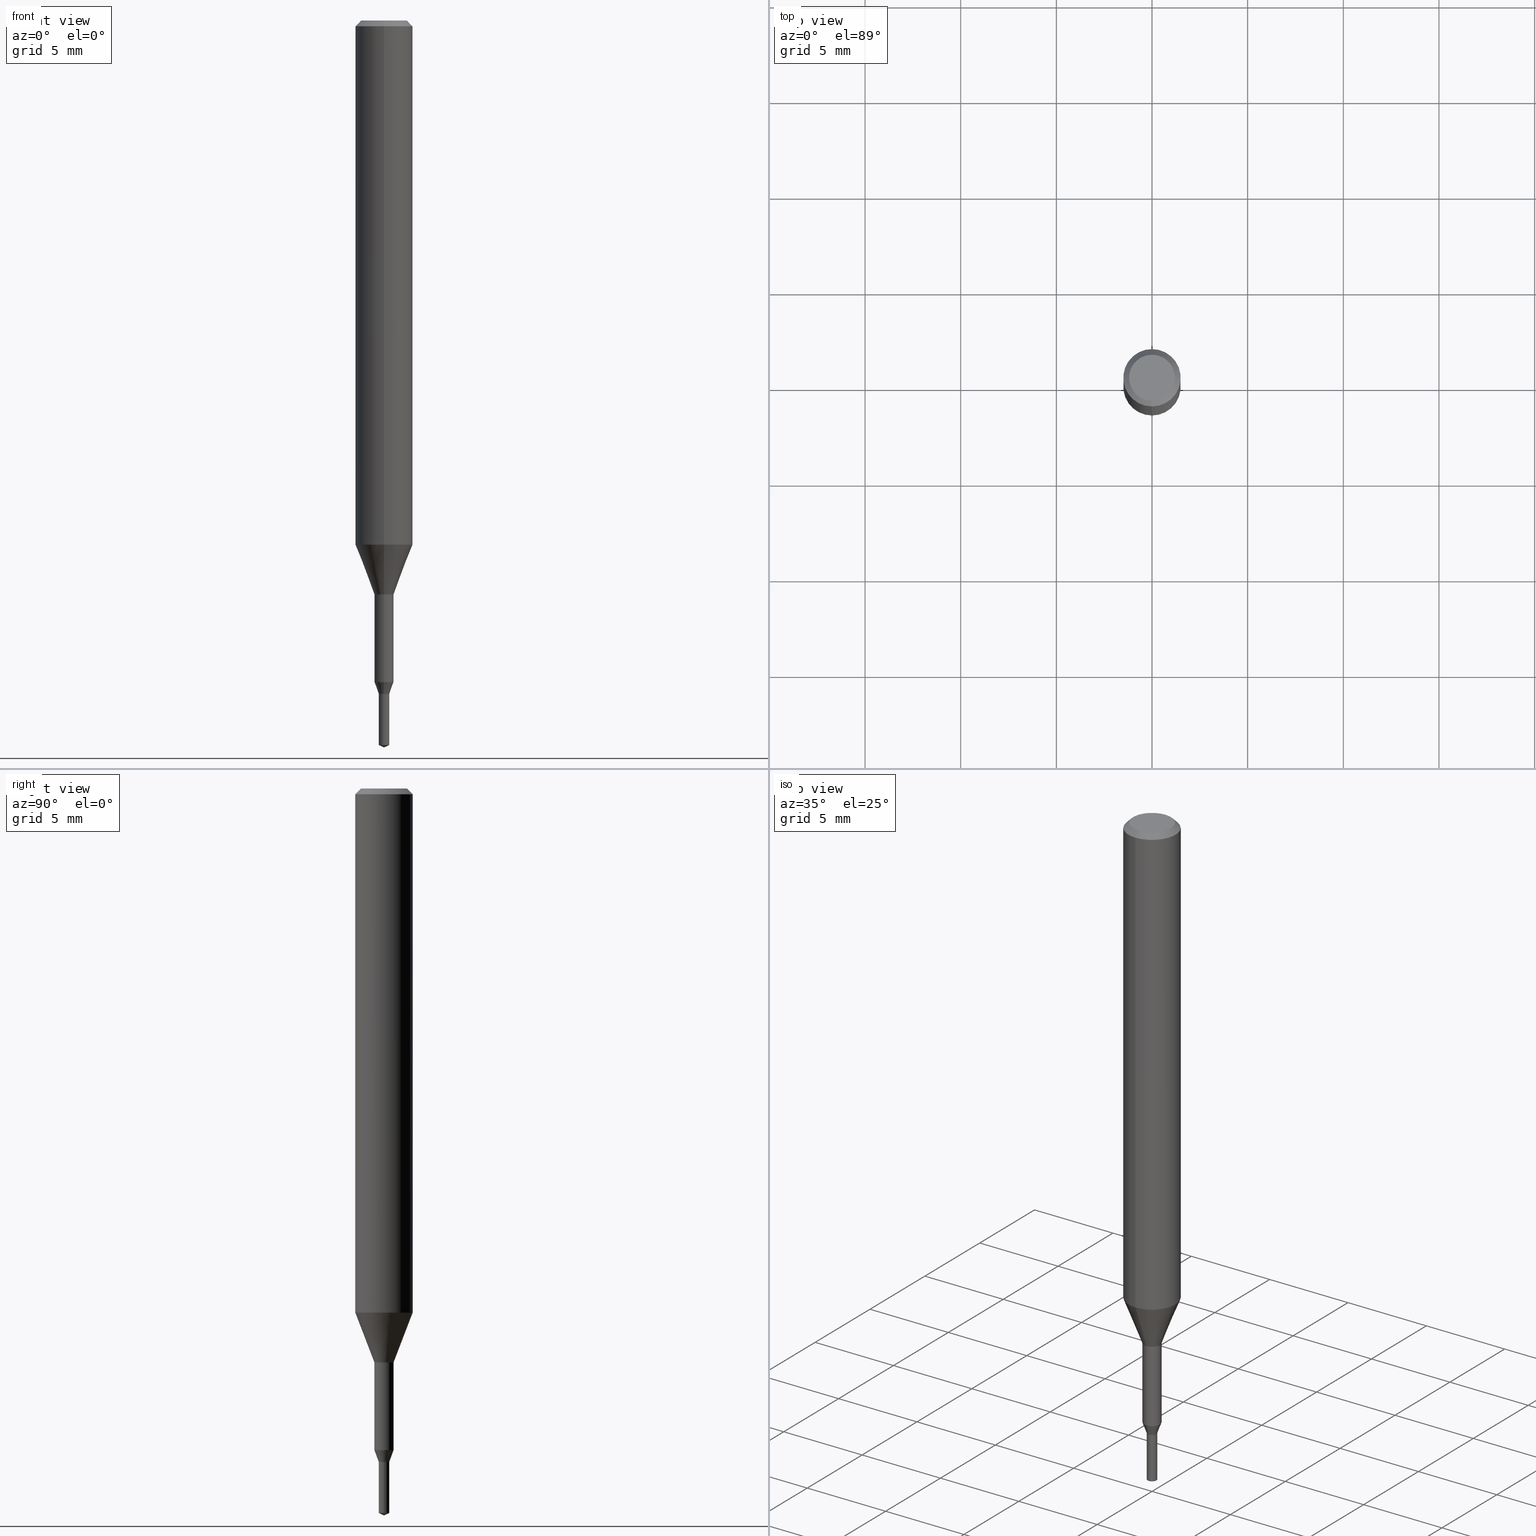
[diagram: canonical four-view strip — front | top / right | iso, engineering-drawing reading convention]
A machine part, canonical four-view strip (front | top / right | iso — engineering-drawing reading convention). The complete STEP part file that produces these views, byte-faithful:
ISO-10303-21;
HEADER;
FILE_DESCRIPTION(('no description'),'unknown implementation level');
FILE_NAME('UTDSX2055-028-Huellk.stp','  ',('CIMSOURCE GmbH'),('CADClick - KiM GmbH - www.kimweb.de'),'unknown preprocess','ACIS','unknown authorization');
FILE_SCHEMA(('automotive_design'));
ENDSEC;
DATA;
#1=MECHANICAL_DESIGN_GEOMETRIC_PRESENTATION_REPRESENTATION(' ',(#14,#15,#16,#17,#18,#19,#20,#21,#22,#23,#24,#25,#26,#27,#28,#29,#30,#31,#32,#33,#34,#35,#36,#37,#38,#39,#40,#41,#42,#43,#44,#45,#46,#47,#48,#49,#50,#51,#52,#53,#54,#55,#56,#57,#58,#59,#60,#61,#62,#63,#64,#65,#66,#67,#68,#69,#70,#71,#72,#73,#74,#75,#76,#77,#78,#79,#80,#81,#82,#83,#84,#85,#86,#87,#88,#89,#90,#91,#92),#10);
#2=PRODUCT_DEFINITION_CONTEXT('',#93,'design');
#3=APPLICATION_PROTOCOL_DEFINITION('INTERNATIONAL STANDARD','automotive_design',1994,#93);
#4=PRODUCT_CATEGORY_RELATIONSHIP('NONE','NONE',#94,#95);
#5=SHAPE_DEFINITION_REPRESENTATION(#96,#97);
#6=PRODUCT_DEFINITION_CONTEXT('',#98,'design');
#7=APPLICATION_PROTOCOL_DEFINITION('INTERNATIONAL STANDARD','automotive_design',1994,#98);
#8=PRODUCT_CATEGORY_RELATIONSHIP('NONE','NONE',#99,#100);
#9=SHAPE_DEFINITION_REPRESENTATION(#101,#102);
#10= (GEOMETRIC_REPRESENTATION_CONTEXT(3)GLOBAL_UNCERTAINTY_ASSIGNED_CONTEXT((#105))GLOBAL_UNIT_ASSIGNED_CONTEXT((#107,#108,#109))REPRESENTATION_CONTEXT('NONE','WORKSPACE'));
#14=STYLED_ITEM('',(#111),#112);
#15=STYLED_ITEM('',(#113),#114);
#16=STYLED_ITEM('',(#115),#116);
#17=STYLED_ITEM('',(#117),#118);
#18=STYLED_ITEM('',(#119),#120);
#19=STYLED_ITEM('',(#121),#122);
#20=STYLED_ITEM('',(#123),#124);
#21=STYLED_ITEM('',(#125),#126);
#22=STYLED_ITEM('',(#127),#128);
#23=STYLED_ITEM('',(#129),#130);
#24=STYLED_ITEM('',(#131),#132);
#25=STYLED_ITEM('',(#133),#134);
#26=STYLED_ITEM('',(#135),#136);
#27=STYLED_ITEM('',(#137),#138);
#28=STYLED_ITEM('',(#139),#140);
#29=STYLED_ITEM('',(#141),#142);
#30=STYLED_ITEM('',(#143),#144);
#31=STYLED_ITEM('',(#145),#146);
#32=STYLED_ITEM('',(#147),#148);
#33=STYLED_ITEM('',(#149),#150);
#34=STYLED_ITEM('',(#151),#152);
#35=STYLED_ITEM('',(#153),#154);
#36=STYLED_ITEM('',(#155),#156);
#37=STYLED_ITEM('',(#157),#158);
#38=STYLED_ITEM('',(#159),#160);
#39=STYLED_ITEM('',(#161),#162);
#40=STYLED_ITEM('',(#163),#164);
#41=STYLED_ITEM('',(#165),#166);
#42=STYLED_ITEM('',(#167),#168);
#43=STYLED_ITEM('',(#169),#170);
#44=STYLED_ITEM('',(#171),#172);
#45=STYLED_ITEM('',(#173),#174);
#46=STYLED_ITEM('',(#175),#176);
#47=STYLED_ITEM('',(#177),#178);
#48=STYLED_ITEM('',(#179),#180);
#49=STYLED_ITEM('',(#181),#182);
#50=STYLED_ITEM('',(#183),#184);
#51=STYLED_ITEM('',(#185),#186);
#52=STYLED_ITEM('',(#187),#188);
#53=STYLED_ITEM('',(#189),#190);
#54=STYLED_ITEM('',(#191),#192);
#55=STYLED_ITEM('',(#193),#194);
#56=STYLED_ITEM('',(#195),#196);
#57=STYLED_ITEM('',(#197),#198);
#58=STYLED_ITEM('',(#199),#200);
#59=STYLED_ITEM('',(#201),#202);
#60=STYLED_ITEM('',(#203),#204);
#61=STYLED_ITEM('',(#205),#206);
#62=STYLED_ITEM('',(#207),#208);
#63=STYLED_ITEM('',(#209),#210);
#64=STYLED_ITEM('',(#211),#212);
#65=STYLED_ITEM('',(#213),#214);
#66=STYLED_ITEM('',(#215),#216);
#67=STYLED_ITEM('',(#217),#218);
#68=STYLED_ITEM('',(#219),#220);
#69=STYLED_ITEM('',(#221),#222);
#70=STYLED_ITEM('',(#223),#224);
#71=STYLED_ITEM('',(#225),#226);
#72=STYLED_ITEM('',(#227),#228);
#73=STYLED_ITEM('',(#229),#230);
#74=STYLED_ITEM('',(#231),#232);
#75=STYLED_ITEM('',(#233),#234);
#76=STYLED_ITEM('',(#235),#236);
#77=STYLED_ITEM('',(#237),#238);
#78=STYLED_ITEM('',(#239),#240);
#79=STYLED_ITEM('',(#241),#242);
#80=STYLED_ITEM('',(#243),#244);
#81=STYLED_ITEM('',(#245),#246);
#82=STYLED_ITEM('',(#247),#248);
#83=STYLED_ITEM('',(#249),#250);
#84=STYLED_ITEM('',(#251),#252);
#85=STYLED_ITEM('',(#253),#254);
#86=STYLED_ITEM('',(#255),#256);
#87=STYLED_ITEM('',(#257),#258);
#88=STYLED_ITEM('',(#259),#260);
#89=STYLED_ITEM('',(#261),#262);
#90=STYLED_ITEM('',(#263),#264);
#91=STYLED_ITEM('',(#265),#266);
#92=STYLED_ITEM('',(#267),#268);
#93=APPLICATION_CONTEXT(' ');
#94=PRODUCT_CATEGORY('part','NONE');
#95=PRODUCT_RELATED_PRODUCT_CATEGORY('detail',' ',(#269));
#96=PRODUCT_DEFINITION_SHAPE('NONE','NONE',#270);
#97=ADVANCED_BREP_SHAPE_REPRESENTATION('1',(#114,#271),#10);
#98=APPLICATION_CONTEXT(' ');
#99=PRODUCT_CATEGORY('part','NONE');
#100=PRODUCT_RELATED_PRODUCT_CATEGORY('detail',' ',(#272));
#101=PRODUCT_DEFINITION_SHAPE('NONE','NONE',#273);
#102=ADVANCED_BREP_SHAPE_REPRESENTATION('2',(#180,#274),#10);
#105=UNCERTAINTY_MEASURE_WITH_UNIT(LENGTH_MEASURE(1.0E-006),#107,'','');
#107= (CONVERSION_BASED_UNIT('MILLIMETRE',#277)LENGTH_UNIT()NAMED_UNIT(#280));
#108= (NAMED_UNIT(#282)PLANE_ANGLE_UNIT()SI_UNIT($,.RADIAN.));
#109= (NAMED_UNIT(#282)SOLID_ANGLE_UNIT()SI_UNIT($,.STERADIAN.));
#111=PRESENTATION_STYLE_ASSIGNMENT((#288));
#112=EDGE_CURVE('',#146,#138,#289,.T.);
#113=PRESENTATION_STYLE_ASSIGNMENT((#290));
#114=MANIFOLD_SOLID_BREP('1',#291);
#115=PRESENTATION_STYLE_ASSIGNMENT((#292));
#116=ADVANCED_FACE('',(#293),#294,.T.);
#117=PRESENTATION_STYLE_ASSIGNMENT((#295));
#118=VERTEX_POINT('',#296);
#119=PRESENTATION_STYLE_ASSIGNMENT((#297));
#120=VERTEX_POINT('',#298);
#121=PRESENTATION_STYLE_ASSIGNMENT((#299));
#122=VERTEX_POINT('',#300);
#123=PRESENTATION_STYLE_ASSIGNMENT((#301));
#124=EDGE_CURVE('',#250,#184,#302,.T.);
#125=PRESENTATION_STYLE_ASSIGNMENT((#303));
#126=EDGE_CURVE('',#128,#250,#304,.T.);
#127=PRESENTATION_STYLE_ASSIGNMENT((#305));
#128=VERTEX_POINT('',#306);
#129=PRESENTATION_STYLE_ASSIGNMENT((#307));
#130=EDGE_CURVE('',#138,#222,#308,.T.);
#131=PRESENTATION_STYLE_ASSIGNMENT((#309));
#132=EDGE_CURVE('',#250,#128,#310,.T.);
#133=PRESENTATION_STYLE_ASSIGNMENT((#311));
#134=VERTEX_POINT('',#312);
#135=PRESENTATION_STYLE_ASSIGNMENT((#313));
#136=ADVANCED_FACE('',(#314),#315,.T.);
#137=PRESENTATION_STYLE_ASSIGNMENT((#316));
#138=VERTEX_POINT('',#317);
#139=PRESENTATION_STYLE_ASSIGNMENT((#318));
#140=VERTEX_POINT('',#319);
#141=PRESENTATION_STYLE_ASSIGNMENT((#320));
#142=ADVANCED_FACE('',(#321),#322,.T.);
#143=PRESENTATION_STYLE_ASSIGNMENT((#323));
#144=ADVANCED_FACE('',(#324),#325,.T.);
#145=PRESENTATION_STYLE_ASSIGNMENT((#326));
#146=VERTEX_POINT('',#327);
#147=PRESENTATION_STYLE_ASSIGNMENT((#328));
#148=ADVANCED_FACE('',(#329),#330,.T.);
#149=PRESENTATION_STYLE_ASSIGNMENT((#331));
#150=ADVANCED_FACE('',(#332),#333,.T.);
#151=PRESENTATION_STYLE_ASSIGNMENT((#334));
#152=ADVANCED_FACE('',(#335),#336,.T.);
#153=PRESENTATION_STYLE_ASSIGNMENT((#337));
#154=EDGE_CURVE('',#128,#120,#338,.T.);
#155=PRESENTATION_STYLE_ASSIGNMENT((#339));
#156=ADVANCED_FACE('',(#340),#341,.T.);
#157=PRESENTATION_STYLE_ASSIGNMENT((#342));
#158=VERTEX_POINT('',#343);
#159=PRESENTATION_STYLE_ASSIGNMENT((#344));
#160=VERTEX_POINT('',#345);
#161=PRESENTATION_STYLE_ASSIGNMENT((#346));
#162=EDGE_CURVE('',#122,#160,#347,.T.);
#163=PRESENTATION_STYLE_ASSIGNMENT((#348));
#164=EDGE_CURVE('',#254,#176,#349,.T.);
#165=PRESENTATION_STYLE_ASSIGNMENT((#350));
#166=VERTEX_POINT('',#351);
#167=PRESENTATION_STYLE_ASSIGNMENT((#352));
#168=EDGE_CURVE('',#176,#254,#353,.T.);
#169=PRESENTATION_STYLE_ASSIGNMENT((#354));
#170=ADVANCED_FACE('',(#355),#356,.T.);
#171=PRESENTATION_STYLE_ASSIGNMENT((#357));
#172=EDGE_CURVE('',#266,#134,#358,.T.);
#173=PRESENTATION_STYLE_ASSIGNMENT((#359));
#174=ADVANCED_FACE('',(#360),#361,.T.);
#175=PRESENTATION_STYLE_ASSIGNMENT((#362));
#176=VERTEX_POINT('',#363);
#177=PRESENTATION_STYLE_ASSIGNMENT((#364));
#178=VERTEX_POINT('',#365);
#179=PRESENTATION_STYLE_ASSIGNMENT((#366));
#180=MANIFOLD_SOLID_BREP('2',#367);
#181=PRESENTATION_STYLE_ASSIGNMENT((#368));
#182=EDGE_CURVE('',#248,#236,#369,.T.);
#183=PRESENTATION_STYLE_ASSIGNMENT((#370));
#184=VERTEX_POINT('',#371);
#185=PRESENTATION_STYLE_ASSIGNMENT((#372));
#186=EDGE_CURVE('',#158,#258,#373,.T.);
#187=PRESENTATION_STYLE_ASSIGNMENT((#374));
#188=EDGE_CURVE('',#140,#120,#375,.T.);
#189=PRESENTATION_STYLE_ASSIGNMENT((#376));
#190=ADVANCED_FACE('',(#377),#378,.T.);
#191=PRESENTATION_STYLE_ASSIGNMENT((#379));
#192=EDGE_CURVE('',#140,#250,#380,.T.);
#193=PRESENTATION_STYLE_ASSIGNMENT((#381));
#194=EDGE_CURVE('',#134,#254,#382,.T.);
#195=PRESENTATION_STYLE_ASSIGNMENT((#383));
#196=EDGE_CURVE('',#120,#140,#384,.T.);
#197=PRESENTATION_STYLE_ASSIGNMENT((#385));
#198=EDGE_CURVE('',#184,#128,#386,.T.);
#199=PRESENTATION_STYLE_ASSIGNMENT((#387));
#200=EDGE_CURVE('',#178,#248,#388,.T.);
#201=PRESENTATION_STYLE_ASSIGNMENT((#389));
#202=EDGE_CURVE('',#222,#236,#390,.T.);
#203=PRESENTATION_STYLE_ASSIGNMENT((#391));
#204=ADVANCED_FACE('',(#392),#393,.T.);
#205=PRESENTATION_STYLE_ASSIGNMENT((#394));
#206=EDGE_CURVE('',#258,#158,#395,.T.);
#207=PRESENTATION_STYLE_ASSIGNMENT((#396));
#208=ADVANCED_FACE('',(#397),#398,.T.);
#209=PRESENTATION_STYLE_ASSIGNMENT((#399));
#210=EDGE_CURVE('',#222,#178,#400,.T.);
#211=PRESENTATION_STYLE_ASSIGNMENT((#401));
#212=EDGE_CURVE('',#266,#160,#402,.T.);
#213=PRESENTATION_STYLE_ASSIGNMENT((#403));
#214=EDGE_CURVE('',#248,#178,#404,.T.);
#215=PRESENTATION_STYLE_ASSIGNMENT((#405));
#216=EDGE_CURVE('',#120,#258,#406,.T.);
#217=PRESENTATION_STYLE_ASSIGNMENT((#407));
#218=EDGE_CURVE('',#176,#122,#408,.T.);
#219=PRESENTATION_STYLE_ASSIGNMENT((#409));
#220=EDGE_CURVE('',#118,#166,#410,.T.);
#221=PRESENTATION_STYLE_ASSIGNMENT((#411));
#222=VERTEX_POINT('',#412);
#223=PRESENTATION_STYLE_ASSIGNMENT((#413));
#224=ADVANCED_FACE('',(#414),#415,.T.);
#225=PRESENTATION_STYLE_ASSIGNMENT((#416));
#226=EDGE_CURVE('',#122,#134,#417,.T.);
#227=PRESENTATION_STYLE_ASSIGNMENT((#418));
#228=ADVANCED_FACE('',(#419),#420,.T.);
#229=PRESENTATION_STYLE_ASSIGNMENT((#421));
#230=EDGE_CURVE('',#236,#146,#422,.T.);
#231=PRESENTATION_STYLE_ASSIGNMENT((#423));
#232=EDGE_CURVE('',#158,#140,#424,.T.);
#233=PRESENTATION_STYLE_ASSIGNMENT((#425));
#234=ADVANCED_FACE('',(#426),#427,.T.);
#235=PRESENTATION_STYLE_ASSIGNMENT((#428));
#236=VERTEX_POINT('',#429);
#237=PRESENTATION_STYLE_ASSIGNMENT((#430));
#238=EDGE_CURVE('',#138,#146,#431,.T.);
#239=PRESENTATION_STYLE_ASSIGNMENT((#432));
#240=EDGE_CURVE('',#166,#118,#433,.T.);
#241=PRESENTATION_STYLE_ASSIGNMENT((#434));
#242=ADVANCED_FACE('',(#435),#436,.T.);
#243=PRESENTATION_STYLE_ASSIGNMENT((#437));
#244=EDGE_CURVE('',#134,#122,#438,.T.);
#245=PRESENTATION_STYLE_ASSIGNMENT((#439));
#246=EDGE_CURVE('',#160,#266,#440,.T.);
#247=PRESENTATION_STYLE_ASSIGNMENT((#441));
#248=VERTEX_POINT('',#442);
#249=PRESENTATION_STYLE_ASSIGNMENT((#443));
#250=VERTEX_POINT('',#444);
#251=PRESENTATION_STYLE_ASSIGNMENT((#445));
#252=ADVANCED_FACE('',(#446),#447,.T.);
#253=PRESENTATION_STYLE_ASSIGNMENT((#448));
#254=VERTEX_POINT('',#449);
#255=PRESENTATION_STYLE_ASSIGNMENT((#450));
#256=EDGE_CURVE('',#254,#166,#451,.T.);
#257=PRESENTATION_STYLE_ASSIGNMENT((#452));
#258=VERTEX_POINT('',#453);
#259=PRESENTATION_STYLE_ASSIGNMENT((#454));
#260=ADVANCED_FACE('',(#455,#456),#457,.T.);
#261=PRESENTATION_STYLE_ASSIGNMENT((#458));
#262=ADVANCED_FACE('',(#459),#460,.T.);
#263=PRESENTATION_STYLE_ASSIGNMENT((#461));
#264=EDGE_CURVE('',#236,#222,#462,.T.);
#265=PRESENTATION_STYLE_ASSIGNMENT((#463));
#266=VERTEX_POINT('',#464);
#267=PRESENTATION_STYLE_ASSIGNMENT((#465));
#268=EDGE_CURVE('',#118,#176,#466,.T.);
#269=PRODUCT('1','1','PART-1-DESC',(#467));
#270=PRODUCT_DEFINITION('NONE','NONE',#468,#2);
#271=AXIS2_PLACEMENT_3D('',#469,#470,#471);
#272=PRODUCT('2','2','PART-2-DESC',(#472));
#273=PRODUCT_DEFINITION('NONE','NONE',#473,#6);
#274=AXIS2_PLACEMENT_3D('',#474,#475,#476);
#277=LENGTH_MEASURE_WITH_UNIT(LENGTH_MEASURE(1.0),#477);
#280=DIMENSIONAL_EXPONENTS(1.0,0.0,0.0,0.0,0.0,0.0,0.0);
#282=DIMENSIONAL_EXPONENTS(0.0,0.0,0.0,0.0,0.0,0.0,0.0);
#288=CURVE_STYLE('',#478,POSITIVE_LENGTH_MEASURE(1.0E-006),#479);
#289=CIRCLE('',#480,0.275036399676376);
#290=SURFACE_STYLE_USAGE(.BOTH.,#481);
#291=CLOSED_SHELL('',(#142,#242,#228,#170,#234,#262,#252,#116,#208,#260,#144,#156,#148));
#292=SURFACE_STYLE_USAGE(.BOTH.,#482);
#293=FACE_OUTER_BOUND('',#483,.T.);
#294=CYLINDRICAL_SURFACE('',#484,1.5);
#295=POINT_STYLE(' ',#485,POSITIVE_LENGTH_MEASURE(1.0E-006),#486);
#296=CARTESIAN_POINT('',(6.12303176911189E-017,-0.5,-30.0));
#297=POINT_STYLE(' ',#487,POSITIVE_LENGTH_MEASURE(1.0E-006),#488);
#298=CARTESIAN_POINT('',(0.275,3.36766747301154E-017,-35.2));
#299=POINT_STYLE(' ',#489,POSITIVE_LENGTH_MEASURE(1.0E-006),#490);
#300=CARTESIAN_POINT('',(1.83690953073357E-016,-1.5,-0.300000000000001));
#301=CURVE_STYLE('',#491,POSITIVE_LENGTH_MEASURE(1.0E-006),#492);
#302=LINE('',#493,#494);
#303=CURVE_STYLE('',#495,POSITIVE_LENGTH_MEASURE(1.0E-006),#496);
#304=CIRCLE('',#497,0.275);
#305=POINT_STYLE(' ',#498,POSITIVE_LENGTH_MEASURE(1.0E-006),#499);
#306=CARTESIAN_POINT('',(0.275,3.36766747301154E-017,-37.87176539));
#307=CURVE_STYLE('',#500,POSITIVE_LENGTH_MEASURE(1.0E-006),#501);
#308=LINE('',#502,#503);
#309=CURVE_STYLE('',#504,POSITIVE_LENGTH_MEASURE(1.0E-006),#505);
#310=CIRCLE('',#506,0.275);
#311=POINT_STYLE(' ',#507,POSITIVE_LENGTH_MEASURE(1.0E-006),#508);
#312=CARTESIAN_POINT('',(0.0,1.5,-0.300000000000001));
#313=SURFACE_STYLE_USAGE(.BOTH.,#509);
#314=FACE_OUTER_BOUND('',#510,.T.);
#315=CONICAL_SURFACE('',#511,0.275518203883495,1.47460696996849);
#316=POINT_STYLE(' ',#512,POSITIVE_LENGTH_MEASURE(1.0E-006),#513);
#317=CARTESIAN_POINT('',(3.36811322576121E-017,-0.275036399676376,-35.1999));
#318=POINT_STYLE(' ',#514,POSITIVE_LENGTH_MEASURE(1.0E-006),#515);
#319=CARTESIAN_POINT('',(-0.275,0.0,-35.2));
#320=SURFACE_STYLE_USAGE(.BOTH.,#516);
#321=FACE_OUTER_BOUND('',#517,.T.);
#322=CONICAL_SURFACE('',#518,0.387493199838188,0.349089276326414);
#323=SURFACE_STYLE_USAGE(.BOTH.,#519);
#324=FACE_OUTER_BOUND('',#520,.T.);
#325=CYLINDRICAL_SURFACE('',#521,0.49995);
#326=POINT_STYLE(' ',#522,POSITIVE_LENGTH_MEASURE(1.0E-006),#523);
#327=CARTESIAN_POINT('',(0.0,0.275036399676376,-35.1999));
#328=SURFACE_STYLE_USAGE(.BOTH.,#524);
#329=FACE_OUTER_BOUND('',#525,.T.);
#330=PLANE('',#526);
#331=SURFACE_STYLE_USAGE(.BOTH.,#527);
#332=FACE_OUTER_BOUND('',#528,.T.);
#333=CONICAL_SURFACE('',#529,0.1375,1.13446400182674);
#334=SURFACE_STYLE_USAGE(.BOTH.,#530);
#335=FACE_OUTER_BOUND('',#531,.T.);
#336=CYLINDRICAL_SURFACE('',#532,0.275);
#337=CURVE_STYLE('',#533,POSITIVE_LENGTH_MEASURE(1.0E-006),#534);
#338=LINE('',#535,#536);
#339=SURFACE_STYLE_USAGE(.BOTH.,#537);
#340=FACE_OUTER_BOUND('',#538,.T.);
#341=CONICAL_SURFACE('',#539,0.387493199838188,0.349089276326414);
#342=POINT_STYLE(' ',#540,POSITIVE_LENGTH_MEASURE(1.0E-006),#541);
#343=CARTESIAN_POINT('',(-0.276036407766991,0.0,-35.1999));
#344=POINT_STYLE(' ',#542,POSITIVE_LENGTH_MEASURE(1.0E-006),#543);
#345=CARTESIAN_POINT('',(1.46952762458685E-016,-1.2,0.0));
#346=CURVE_STYLE('',#544,POSITIVE_LENGTH_MEASURE(1.0E-006),#545);
#347=LINE('',#546,#547);
#348=CURVE_STYLE('',#548,POSITIVE_LENGTH_MEASURE(1.0E-006),#549);
#349=CIRCLE('',#550,1.5);
#350=POINT_STYLE(' ',#551,POSITIVE_LENGTH_MEASURE(1.0E-006),#552);
#351=CARTESIAN_POINT('',(0.0,0.5,-30.0));
#352=CURVE_STYLE('',#553,POSITIVE_LENGTH_MEASURE(1.0E-006),#554);
#353=CIRCLE('',#555,1.5);
#354=SURFACE_STYLE_USAGE(.BOTH.,#556);
#355=FACE_OUTER_BOUND('',#557,.T.);
#356=CYLINDRICAL_SURFACE('',#558,1.5);
#357=CURVE_STYLE('',#559,POSITIVE_LENGTH_MEASURE(1.0E-006),#560);
#358=LINE('',#561,#562);
#359=SURFACE_STYLE_USAGE(.BOTH.,#563);
#360=FACE_OUTER_BOUND('',#564,.T.);
#361=CONICAL_SURFACE('',#565,0.1375,1.13446400182674);
#362=POINT_STYLE(' ',#566,POSITIVE_LENGTH_MEASURE(1.0E-006),#567);
#363=CARTESIAN_POINT('',(1.83690953073357E-016,-1.5,-27.395));
#364=POINT_STYLE(' ',#568,POSITIVE_LENGTH_MEASURE(1.0E-006),#569);
#365=CARTESIAN_POINT('',(6.12241946593498E-017,-0.49995,-30.0));
#366=SURFACE_STYLE_USAGE(.BOTH.,#570);
#367=CLOSED_SHELL('',(#174,#204,#190,#224,#136,#152,#150));
#368=CURVE_STYLE('',#571,POSITIVE_LENGTH_MEASURE(1.0E-006),#572);
#369=LINE('',#573,#574);
#370=POINT_STYLE(' ',#575,POSITIVE_LENGTH_MEASURE(1.0E-006),#576);
#371=CARTESIAN_POINT('',(0.0,0.0,-38.0));
#372=CURVE_STYLE('',#577,POSITIVE_LENGTH_MEASURE(1.0E-006),#578);
#373=CIRCLE('',#579,0.276036407766991);
#374=CURVE_STYLE('',#580,POSITIVE_LENGTH_MEASURE(1.0E-006),#581);
#375=CIRCLE('',#582,0.275);
#376=SURFACE_STYLE_USAGE(.BOTH.,#583);
#377=FACE_OUTER_BOUND('',#584,.T.);
#378=CONICAL_SURFACE('',#585,0.275518203883495,1.47460696996849);
#379=CURVE_STYLE('',#586,POSITIVE_LENGTH_MEASURE(1.0E-006),#587);
#380=LINE('',#588,#589);
#381=CURVE_STYLE('',#590,POSITIVE_LENGTH_MEASURE(1.0E-006),#591);
#382=LINE('',#592,#593);
#383=CURVE_STYLE('',#594,POSITIVE_LENGTH_MEASURE(1.0E-006),#595);
#384=CIRCLE('',#596,0.275);
#385=CURVE_STYLE('',#597,POSITIVE_LENGTH_MEASURE(1.0E-006),#598);
#386=LINE('',#599,#600);
#387=CURVE_STYLE('',#601,POSITIVE_LENGTH_MEASURE(1.0E-006),#602);
#388=CIRCLE('',#603,0.49995);
#389=CURVE_STYLE('',#604,POSITIVE_LENGTH_MEASURE(1.0E-006),#605);
#390=CIRCLE('',#606,0.49995);
#391=SURFACE_STYLE_USAGE(.BOTH.,#607);
#392=FACE_OUTER_BOUND('',#608,.T.);
#393=CYLINDRICAL_SURFACE('',#609,0.275);
#394=CURVE_STYLE('',#610,POSITIVE_LENGTH_MEASURE(1.0E-006),#611);
#395=CIRCLE('',#612,0.276036407766991);
#396=SURFACE_STYLE_USAGE(.BOTH.,#613);
#397=FACE_OUTER_BOUND('',#614,.T.);
#398=CONICAL_SURFACE('',#615,1.0,0.366530581623394);
#399=CURVE_STYLE('',#616,POSITIVE_LENGTH_MEASURE(1.0E-006),#617);
#400=LINE('',#618,#619);
#401=CURVE_STYLE('',#620,POSITIVE_LENGTH_MEASURE(1.0E-006),#621);
#402=CIRCLE('',#622,1.2);
#403=CURVE_STYLE('',#623,POSITIVE_LENGTH_MEASURE(1.0E-006),#624);
#404=CIRCLE('',#625,0.49995);
#405=CURVE_STYLE('',#626,POSITIVE_LENGTH_MEASURE(1.0E-006),#627);
#406=LINE('',#628,#629);
#407=CURVE_STYLE('',#630,POSITIVE_LENGTH_MEASURE(1.0E-006),#631);
#408=LINE('',#632,#633);
#409=CURVE_STYLE('',#634,POSITIVE_LENGTH_MEASURE(1.0E-006),#635);
#410=CIRCLE('',#636,0.5);
#411=POINT_STYLE(' ',#637,POSITIVE_LENGTH_MEASURE(1.0E-006),#638);
#412=CARTESIAN_POINT('',(6.12241946593498E-017,-0.49995,-34.582));
#413=SURFACE_STYLE_USAGE(.BOTH.,#639);
#414=FACE_OUTER_BOUND('',#640,.T.);
#415=PLANE('',#641);
#416=CURVE_STYLE('',#642,POSITIVE_LENGTH_MEASURE(1.0E-006),#643);
#417=CIRCLE('',#644,1.5);
#418=SURFACE_STYLE_USAGE(.BOTH.,#645);
#419=FACE_OUTER_BOUND('',#646,.T.);
#420=CONICAL_SURFACE('',#647,1.0,0.366530581623394);
#421=CURVE_STYLE('',#648,POSITIVE_LENGTH_MEASURE(1.0E-006),#649);
#422=LINE('',#650,#651);
#423=CURVE_STYLE('',#652,POSITIVE_LENGTH_MEASURE(1.0E-006),#653);
#424=LINE('',#654,#655);
#425=SURFACE_STYLE_USAGE(.BOTH.,#656);
#426=FACE_OUTER_BOUND('',#657,.T.);
#427=CONICAL_SURFACE('',#658,1.35,0.785398163397447);
#428=POINT_STYLE(' ',#659,POSITIVE_LENGTH_MEASURE(1.0E-006),#660);
#429=CARTESIAN_POINT('',(0.0,0.49995,-34.582));
#430=CURVE_STYLE('',#661,POSITIVE_LENGTH_MEASURE(1.0E-006),#662);
#431=CIRCLE('',#663,0.275036399676376);
#432=CURVE_STYLE('',#664,POSITIVE_LENGTH_MEASURE(1.0E-006),#665);
#433=CIRCLE('',#666,0.5);
#434=SURFACE_STYLE_USAGE(.BOTH.,#667);
#435=FACE_OUTER_BOUND('',#668,.T.);
#436=CYLINDRICAL_SURFACE('',#669,0.49995);
#437=CURVE_STYLE('',#670,POSITIVE_LENGTH_MEASURE(1.0E-006),#671);
#438=CIRCLE('',#672,1.5);
#439=CURVE_STYLE('',#673,POSITIVE_LENGTH_MEASURE(1.0E-006),#674);
#440=CIRCLE('',#675,1.2);
#441=POINT_STYLE(' ',#676,POSITIVE_LENGTH_MEASURE(1.0E-006),#677);
#442=CARTESIAN_POINT('',(0.0,0.49995,-30.0));
#443=POINT_STYLE(' ',#678,POSITIVE_LENGTH_MEASURE(1.0E-006),#679);
#444=CARTESIAN_POINT('',(-0.275,0.0,-37.87176539));
#445=SURFACE_STYLE_USAGE(.BOTH.,#680);
#446=FACE_OUTER_BOUND('',#681,.T.);
#447=CONICAL_SURFACE('',#682,1.35,0.785398163397447);
#448=POINT_STYLE(' ',#683,POSITIVE_LENGTH_MEASURE(1.0E-006),#684);
#449=CARTESIAN_POINT('',(0.0,1.5,-27.395));
#450=CURVE_STYLE('',#685,POSITIVE_LENGTH_MEASURE(1.0E-006),#686);
#451=LINE('',#687,#688);
#452=POINT_STYLE(' ',#689,POSITIVE_LENGTH_MEASURE(1.0E-006),#690);
#453=CARTESIAN_POINT('',(0.276036407766991,3.38035938837761E-017,-35.1999));
#454=SURFACE_STYLE_USAGE(.BOTH.,#691);
#455=FACE_BOUND('',#692,.T.);
#456=FACE_OUTER_BOUND('',#693,.T.);
#457=PLANE('',#694);
#458=SURFACE_STYLE_USAGE(.BOTH.,#695);
#459=FACE_OUTER_BOUND('',#696,.T.);
#460=PLANE('',#697);
#461=CURVE_STYLE('',#698,POSITIVE_LENGTH_MEASURE(1.0E-006),#699);
#462=CIRCLE('',#700,0.49995);
#463=POINT_STYLE(' ',#701,POSITIVE_LENGTH_MEASURE(1.0E-006),#702);
#464=CARTESIAN_POINT('',(0.0,1.2,0.0));
#465=CURVE_STYLE('',#703,POSITIVE_LENGTH_MEASURE(1.0E-006),#704);
#466=LINE('',#705,#706);
#467=PRODUCT_CONTEXT('',#93,'mechanical');
#468=PRODUCT_DEFINITION_FORMATION_WITH_SPECIFIED_SOURCE(' ','NONE',#269,.NOT_KNOWN.);
#469=CARTESIAN_POINT('',(0.0,0.0,0.0));
#470=DIRECTION('',(0.0,0.0,1.0));
#471=DIRECTION('',(1.0,0.0,0.0));
#472=PRODUCT_CONTEXT('',#98,'mechanical');
#473=PRODUCT_DEFINITION_FORMATION_WITH_SPECIFIED_SOURCE(' ','NONE',#272,.NOT_KNOWN.);
#474=CARTESIAN_POINT('',(0.0,0.0,0.0));
#475=DIRECTION('',(0.0,0.0,1.0));
#476=DIRECTION('',(1.0,0.0,0.0));
#477= (NAMED_UNIT(#280)LENGTH_UNIT()SI_UNIT(.MILLI.,.METRE.));
#478=DRAUGHTING_PRE_DEFINED_CURVE_FONT('continuous');
#479=COLOUR_RGB('',0.498039215803146,0.498039215803146,0.498039215803146);
#480=AXIS2_PLACEMENT_3D('',#708,#709,#710);
#481=SURFACE_SIDE_STYLE('',(#711));
#482=SURFACE_SIDE_STYLE('',(#712));
#483=EDGE_LOOP('',(#713,#714,#715,#716));
#484=AXIS2_PLACEMENT_3D('',#717,#718,#719);
#485=PRE_DEFINED_MARKER('');
#486=COLOUR_RGB('',0.498039215803146,0.498039215803146,0.498039215803146);
#487=PRE_DEFINED_MARKER('');
#488=COLOUR_RGB('',0.800000011920929,0.800000011920929,0.800000011920929);
#489=PRE_DEFINED_MARKER('');
#490=COLOUR_RGB('',0.498039215803146,0.498039215803146,0.498039215803146);
#491=DRAUGHTING_PRE_DEFINED_CURVE_FONT('continuous');
#492=COLOUR_RGB('',0.800000011920929,0.800000011920929,0.800000011920929);
#493=CARTESIAN_POINT('',(-0.1375,-1.68383373650577E-017,-37.935882695));
#494=VECTOR('',#720,1.0);
#495=DRAUGHTING_PRE_DEFINED_CURVE_FONT('continuous');
#496=COLOUR_RGB('',0.800000011920929,0.800000011920929,0.800000011920929);
#497=AXIS2_PLACEMENT_3D('',#721,#722,#723);
#498=PRE_DEFINED_MARKER('');
#499=COLOUR_RGB('',0.800000011920929,0.800000011920929,0.800000011920929);
#500=DRAUGHTING_PRE_DEFINED_CURVE_FONT('continuous');
#501=COLOUR_RGB('',0.498039215803146,0.498039215803146,0.498039215803146);
#502=CARTESIAN_POINT('',(4.74526634584809E-017,-0.387493199838188,-34.89095));
#503=VECTOR('',#724,1.0);
#504=DRAUGHTING_PRE_DEFINED_CURVE_FONT('continuous');
#505=COLOUR_RGB('',0.800000011920929,0.800000011920929,0.800000011920929);
#506=AXIS2_PLACEMENT_3D('',#725,#726,#727);
#507=PRE_DEFINED_MARKER('');
#508=COLOUR_RGB('',0.498039215803146,0.498039215803146,0.498039215803146);
#509=SURFACE_SIDE_STYLE('',(#728));
#510=EDGE_LOOP('',(#729,#730,#731,#732));
#511=AXIS2_PLACEMENT_3D('',#733,#734,#735);
#512=PRE_DEFINED_MARKER('');
#513=COLOUR_RGB('',0.498039215803146,0.498039215803146,0.498039215803146);
#514=PRE_DEFINED_MARKER('');
#515=COLOUR_RGB('',0.800000011920929,0.800000011920929,0.800000011920929);
#516=SURFACE_SIDE_STYLE('',(#736));
#517=EDGE_LOOP('',(#737,#738,#739,#740));
#518=AXIS2_PLACEMENT_3D('',#741,#742,#743);
#519=SURFACE_SIDE_STYLE('',(#744));
#520=EDGE_LOOP('',(#745,#746,#747,#748));
#521=AXIS2_PLACEMENT_3D('',#749,#750,#751);
#522=PRE_DEFINED_MARKER('');
#523=COLOUR_RGB('',0.498039215803146,0.498039215803146,0.498039215803146);
#524=SURFACE_SIDE_STYLE('',(#752));
#525=EDGE_LOOP('',(#753,#754));
#526=AXIS2_PLACEMENT_3D('',#755,#756,#757);
#527=SURFACE_SIDE_STYLE('',(#758));
#528=EDGE_LOOP('',(#759,#760,#761));
#529=AXIS2_PLACEMENT_3D('',#762,#763,#764);
#530=SURFACE_SIDE_STYLE('',(#765));
#531=EDGE_LOOP('',(#766,#767,#768,#769));
#532=AXIS2_PLACEMENT_3D('',#770,#771,#772);
#533=DRAUGHTING_PRE_DEFINED_CURVE_FONT('continuous');
#534=COLOUR_RGB('',0.800000011920929,0.800000011920929,0.800000011920929);
#535=CARTESIAN_POINT('',(0.275,3.36766747301154E-017,-36.535882695));
#536=VECTOR('',#773,1.0);
#537=SURFACE_SIDE_STYLE('',(#774));
#538=EDGE_LOOP('',(#775,#776,#777,#778));
#539=AXIS2_PLACEMENT_3D('',#779,#780,#781);
#540=PRE_DEFINED_MARKER('');
#541=COLOUR_RGB('',0.800000011920929,0.800000011920929,0.800000011920929);
#542=PRE_DEFINED_MARKER('');
#543=COLOUR_RGB('',0.498039215803146,0.498039215803146,0.498039215803146);
#544=DRAUGHTING_PRE_DEFINED_CURVE_FONT('continuous');
#545=COLOUR_RGB('',0.498039215803146,0.498039215803146,0.498039215803146);
#546=CARTESIAN_POINT('',(1.65321857766021E-016,-1.35,-0.150000000000002));
#547=VECTOR('',#782,1.0);
#548=DRAUGHTING_PRE_DEFINED_CURVE_FONT('continuous');
#549=COLOUR_RGB('',0.498039215803146,0.498039215803146,0.498039215803146);
#550=AXIS2_PLACEMENT_3D('',#783,#784,#785);
#551=PRE_DEFINED_MARKER('');
#552=COLOUR_RGB('',0.498039215803146,0.498039215803146,0.498039215803146);
#553=DRAUGHTING_PRE_DEFINED_CURVE_FONT('continuous');
#554=COLOUR_RGB('',0.498039215803146,0.498039215803146,0.498039215803146);
#555=AXIS2_PLACEMENT_3D('',#786,#787,#788);
#556=SURFACE_SIDE_STYLE('',(#789));
#557=EDGE_LOOP('',(#790,#791,#792,#793));
#558=AXIS2_PLACEMENT_3D('',#794,#795,#796);
#559=DRAUGHTING_PRE_DEFINED_CURVE_FONT('continuous');
#560=COLOUR_RGB('',0.498039215803146,0.498039215803146,0.498039215803146);
#561=CARTESIAN_POINT('',(-1.65321857766021E-016,1.35,-0.150000000000002));
#562=VECTOR('',#797,1.0);
#563=SURFACE_SIDE_STYLE('',(#798));
#564=EDGE_LOOP('',(#799,#800,#801));
#565=AXIS2_PLACEMENT_3D('',#802,#803,#804);
#566=PRE_DEFINED_MARKER('');
#567=COLOUR_RGB('',0.498039215803146,0.498039215803146,0.498039215803146);
#568=PRE_DEFINED_MARKER('');
#569=COLOUR_RGB('',0.498039215803146,0.498039215803146,0.498039215803146);
#570=SURFACE_SIDE_STYLE('',(#805));
#571=DRAUGHTING_PRE_DEFINED_CURVE_FONT('continuous');
#572=COLOUR_RGB('',0.498039215803146,0.498039215803146,0.498039215803146);
#573=CARTESIAN_POINT('',(-6.12241946593498E-017,0.49995,-32.291));
#574=VECTOR('',#806,1.0);
#575=PRE_DEFINED_MARKER('');
#576=COLOUR_RGB('',0.800000011920929,0.800000011920929,0.800000011920929);
#577=DRAUGHTING_PRE_DEFINED_CURVE_FONT('continuous');
#578=COLOUR_RGB('',0.800000011920929,0.800000011920929,0.800000011920929);
#579=AXIS2_PLACEMENT_3D('',#807,#808,#809);
#580=DRAUGHTING_PRE_DEFINED_CURVE_FONT('continuous');
#581=COLOUR_RGB('',0.800000011920929,0.800000011920929,0.800000011920929);
#582=AXIS2_PLACEMENT_3D('',#810,#811,#812);
#583=SURFACE_SIDE_STYLE('',(#813));
#584=EDGE_LOOP('',(#814,#815,#816,#817));
#585=AXIS2_PLACEMENT_3D('',#818,#819,#820);
#586=DRAUGHTING_PRE_DEFINED_CURVE_FONT('continuous');
#587=COLOUR_RGB('',0.800000011920929,0.800000011920929,0.800000011920929);
#588=CARTESIAN_POINT('',(-0.275,-3.36766747301154E-017,-36.535882695));
#589=VECTOR('',#821,1.0);
#590=DRAUGHTING_PRE_DEFINED_CURVE_FONT('continuous');
#591=COLOUR_RGB('',0.498039215803146,0.498039215803146,0.498039215803146);
#592=CARTESIAN_POINT('',(-1.83690953073357E-016,1.5,-13.8475));
#593=VECTOR('',#822,1.0);
#594=DRAUGHTING_PRE_DEFINED_CURVE_FONT('continuous');
#595=COLOUR_RGB('',0.800000011920929,0.800000011920929,0.800000011920929);
#596=AXIS2_PLACEMENT_3D('',#823,#824,#825);
#597=DRAUGHTING_PRE_DEFINED_CURVE_FONT('continuous');
#598=COLOUR_RGB('',0.800000011920929,0.800000011920929,0.800000011920929);
#599=CARTESIAN_POINT('',(0.1375,1.68383373650577E-017,-37.935882695));
#600=VECTOR('',#826,1.0);
#601=DRAUGHTING_PRE_DEFINED_CURVE_FONT('continuous');
#602=COLOUR_RGB('',0.498039215803146,0.498039215803146,0.498039215803146);
#603=AXIS2_PLACEMENT_3D('',#827,#828,#829);
#604=DRAUGHTING_PRE_DEFINED_CURVE_FONT('continuous');
#605=COLOUR_RGB('',0.498039215803146,0.498039215803146,0.498039215803146);
#606=AXIS2_PLACEMENT_3D('',#830,#831,#832);
#607=SURFACE_SIDE_STYLE('',(#833));
#608=EDGE_LOOP('',(#834,#835,#836,#837));
#609=AXIS2_PLACEMENT_3D('',#838,#839,#840);
#610=DRAUGHTING_PRE_DEFINED_CURVE_FONT('continuous');
#611=COLOUR_RGB('',0.800000011920929,0.800000011920929,0.800000011920929);
#612=AXIS2_PLACEMENT_3D('',#841,#842,#843);
#613=SURFACE_SIDE_STYLE('',(#844));
#614=EDGE_LOOP('',(#845,#846,#847,#848));
#615=AXIS2_PLACEMENT_3D('',#849,#850,#851);
#616=DRAUGHTING_PRE_DEFINED_CURVE_FONT('continuous');
#617=COLOUR_RGB('',0.498039215803146,0.498039215803146,0.498039215803146);
#618=CARTESIAN_POINT('',(6.12241946593498E-017,-0.49995,-32.291));
#619=VECTOR('',#852,1.0);
#620=DRAUGHTING_PRE_DEFINED_CURVE_FONT('continuous');
#621=COLOUR_RGB('',0.498039215803146,0.498039215803146,0.498039215803146);
#622=AXIS2_PLACEMENT_3D('',#853,#854,#855);
#623=DRAUGHTING_PRE_DEFINED_CURVE_FONT('continuous');
#624=COLOUR_RGB('',0.498039215803146,0.498039215803146,0.498039215803146);
#625=AXIS2_PLACEMENT_3D('',#856,#857,#858);
#626=DRAUGHTING_PRE_DEFINED_CURVE_FONT('continuous');
#627=COLOUR_RGB('',0.800000011920929,0.800000011920929,0.800000011920929);
#628=CARTESIAN_POINT('',(0.275518203883495,3.37401343069458E-017,-35.19995));
#629=VECTOR('',#859,1.0);
#630=DRAUGHTING_PRE_DEFINED_CURVE_FONT('continuous');
#631=COLOUR_RGB('',0.498039215803146,0.498039215803146,0.498039215803146);
#632=CARTESIAN_POINT('',(1.83690953073357E-016,-1.5,-13.8475));
#633=VECTOR('',#860,1.0);
#634=DRAUGHTING_PRE_DEFINED_CURVE_FONT('continuous');
#635=COLOUR_RGB('',0.498039215803146,0.498039215803146,0.498039215803146);
#636=AXIS2_PLACEMENT_3D('',#861,#862,#863);
#637=PRE_DEFINED_MARKER('');
#638=COLOUR_RGB('',0.498039215803146,0.498039215803146,0.498039215803146);
#639=SURFACE_SIDE_STYLE('',(#864));
#640=EDGE_LOOP('',(#865,#866));
#641=AXIS2_PLACEMENT_3D('',#867,#868,#869);
#642=DRAUGHTING_PRE_DEFINED_CURVE_FONT('continuous');
#643=COLOUR_RGB('',0.498039215803146,0.498039215803146,0.498039215803146);
#644=AXIS2_PLACEMENT_3D('',#870,#871,#872);
#645=SURFACE_SIDE_STYLE('',(#873));
#646=EDGE_LOOP('',(#874,#875,#876,#877));
#647=AXIS2_PLACEMENT_3D('',#878,#879,#880);
#648=DRAUGHTING_PRE_DEFINED_CURVE_FONT('continuous');
#649=COLOUR_RGB('',0.498039215803146,0.498039215803146,0.498039215803146);
#650=CARTESIAN_POINT('',(-4.74526634584809E-017,0.387493199838188,-34.89095));
#651=VECTOR('',#881,1.0);
#652=DRAUGHTING_PRE_DEFINED_CURVE_FONT('continuous');
#653=COLOUR_RGB('',0.800000011920929,0.800000011920929,0.800000011920929);
#654=CARTESIAN_POINT('',(-0.275518203883495,-3.37401343069458E-017,-35.19995));
#655=VECTOR('',#882,1.0);
#656=SURFACE_SIDE_STYLE('',(#883));
#657=EDGE_LOOP('',(#884,#885,#886,#887));
#658=AXIS2_PLACEMENT_3D('',#888,#889,#890);
#659=PRE_DEFINED_MARKER('');
#660=COLOUR_RGB('',0.498039215803146,0.498039215803146,0.498039215803146);
#661=DRAUGHTING_PRE_DEFINED_CURVE_FONT('continuous');
#662=COLOUR_RGB('',0.498039215803146,0.498039215803146,0.498039215803146);
#663=AXIS2_PLACEMENT_3D('',#891,#892,#893);
#664=DRAUGHTING_PRE_DEFINED_CURVE_FONT('continuous');
#665=COLOUR_RGB('',0.498039215803146,0.498039215803146,0.498039215803146);
#666=AXIS2_PLACEMENT_3D('',#894,#895,#896);
#667=SURFACE_SIDE_STYLE('',(#897));
#668=EDGE_LOOP('',(#898,#899,#900,#901));
#669=AXIS2_PLACEMENT_3D('',#902,#903,#904);
#670=DRAUGHTING_PRE_DEFINED_CURVE_FONT('continuous');
#671=COLOUR_RGB('',0.498039215803146,0.498039215803146,0.498039215803146);
#672=AXIS2_PLACEMENT_3D('',#905,#906,#907);
#673=DRAUGHTING_PRE_DEFINED_CURVE_FONT('continuous');
#674=COLOUR_RGB('',0.498039215803146,0.498039215803146,0.498039215803146);
#675=AXIS2_PLACEMENT_3D('',#908,#909,#910);
#676=PRE_DEFINED_MARKER('');
#677=COLOUR_RGB('',0.498039215803146,0.498039215803146,0.498039215803146);
#678=PRE_DEFINED_MARKER('');
#679=COLOUR_RGB('',0.800000011920929,0.800000011920929,0.800000011920929);
#680=SURFACE_SIDE_STYLE('',(#911));
#681=EDGE_LOOP('',(#912,#913,#914,#915));
#682=AXIS2_PLACEMENT_3D('',#916,#917,#918);
#683=PRE_DEFINED_MARKER('');
#684=COLOUR_RGB('',0.498039215803146,0.498039215803146,0.498039215803146);
#685=DRAUGHTING_PRE_DEFINED_CURVE_FONT('continuous');
#686=COLOUR_RGB('',0.498039215803146,0.498039215803146,0.498039215803146);
#687=CARTESIAN_POINT('',(-1.22460635382238E-016,1.0,-28.6975));
#688=VECTOR('',#919,1.0);
#689=PRE_DEFINED_MARKER('');
#690=COLOUR_RGB('',0.800000011920929,0.800000011920929,0.800000011920929);
#691=SURFACE_SIDE_STYLE('',(#920));
#692=EDGE_LOOP('',(#921,#922));
#693=EDGE_LOOP('',(#923,#924));
#694=AXIS2_PLACEMENT_3D('',#925,#926,#927);
#695=SURFACE_SIDE_STYLE('',(#928));
#696=EDGE_LOOP('',(#929,#930));
#697=AXIS2_PLACEMENT_3D('',#931,#932,#933);
#698=DRAUGHTING_PRE_DEFINED_CURVE_FONT('continuous');
#699=COLOUR_RGB('',0.498039215803146,0.498039215803146,0.498039215803146);
#700=AXIS2_PLACEMENT_3D('',#934,#935,#936);
#701=PRE_DEFINED_MARKER('');
#702=COLOUR_RGB('',0.498039215803146,0.498039215803146,0.498039215803146);
#703=DRAUGHTING_PRE_DEFINED_CURVE_FONT('continuous');
#704=COLOUR_RGB('',0.498039215803146,0.498039215803146,0.498039215803146);
#705=CARTESIAN_POINT('',(1.22460635382238E-016,-1.0,-28.6975));
#706=VECTOR('',#937,1.0);
#708=CARTESIAN_POINT('',(0.0,0.0,-35.1999));
#709=DIRECTION('',(0.0,0.0,-1.0));
#710=DIRECTION('',(0.0,1.0,0.0));
#711=SURFACE_STYLE_FILL_AREA(#938);
#712=SURFACE_STYLE_FILL_AREA(#939);
#713=ORIENTED_EDGE('',*,*,#194,.T.);
#714=ORIENTED_EDGE('',*,*,#168,.F.);
#715=ORIENTED_EDGE('',*,*,#218,.T.);
#716=ORIENTED_EDGE('',*,*,#226,.T.);
#717=CARTESIAN_POINT('',(0.0,0.0,-13.8475));
#718=DIRECTION('',(-0.0,-0.0,1.0));
#719=DIRECTION('',(0.0,1.0,0.0));
#720=DIRECTION('',(0.906307781978089,1.10987026832903E-016,-0.422618272588818));
#721=CARTESIAN_POINT('',(0.0,0.0,-37.87176539));
#722=DIRECTION('',(0.0,0.0,-1.0));
#723=DIRECTION('',(-1.0,0.0,0.0));
#724=DIRECTION('',(4.1886699800631E-017,-0.342042156403073,0.939684608388972));
#725=CARTESIAN_POINT('',(0.0,0.0,-37.87176539));
#726=DIRECTION('',(0.0,0.0,-1.0));
#727=DIRECTION('',(-1.0,0.0,0.0));
#728=SURFACE_STYLE_FILL_AREA(#940);
#729=ORIENTED_EDGE('',*,*,#232,.T.);
#730=ORIENTED_EDGE('',*,*,#196,.F.);
#731=ORIENTED_EDGE('',*,*,#216,.T.);
#732=ORIENTED_EDGE('',*,*,#206,.T.);
#733=CARTESIAN_POINT('',(0.0,0.0,-35.19995));
#734=DIRECTION('',(-0.0,-0.0,1.0));
#735=DIRECTION('',(-1.0,0.0,0.0));
#736=SURFACE_STYLE_FILL_AREA(#941);
#737=ORIENTED_EDGE('',*,*,#230,.F.);
#738=ORIENTED_EDGE('',*,*,#264,.T.);
#739=ORIENTED_EDGE('',*,*,#130,.F.);
#740=ORIENTED_EDGE('',*,*,#112,.F.);
#741=CARTESIAN_POINT('',(0.0,0.0,-34.89095));
#742=DIRECTION('',(-0.0,-0.0,1.0));
#743=DIRECTION('',(0.0,1.0,0.0));
#744=SURFACE_STYLE_FILL_AREA(#942);
#745=ORIENTED_EDGE('',*,*,#182,.T.);
#746=ORIENTED_EDGE('',*,*,#202,.F.);
#747=ORIENTED_EDGE('',*,*,#210,.T.);
#748=ORIENTED_EDGE('',*,*,#200,.T.);
#749=CARTESIAN_POINT('',(0.0,0.0,-32.291));
#750=DIRECTION('',(-0.0,-0.0,1.0));
#751=DIRECTION('',(0.0,1.0,0.0));
#752=SURFACE_STYLE_FILL_AREA(#943);
#753=ORIENTED_EDGE('',*,*,#112,.T.);
#754=ORIENTED_EDGE('',*,*,#238,.T.);
#755=CARTESIAN_POINT('',(0.0,0.137518199838188,-35.1999));
#756=DIRECTION('',(0.0,0.0,-1.0));
#757=DIRECTION('',(0.0,1.0,0.0));
#758=SURFACE_STYLE_FILL_AREA(#944);
#759=ORIENTED_EDGE('',*,*,#198,.T.);
#760=ORIENTED_EDGE('',*,*,#126,.T.);
#761=ORIENTED_EDGE('',*,*,#124,.T.);
#762=CARTESIAN_POINT('',(0.0,0.0,-37.935882695));
#763=DIRECTION('',(-0.0,-0.0,1.0));
#764=DIRECTION('',(-1.0,0.0,0.0));
#765=SURFACE_STYLE_FILL_AREA(#945);
#766=ORIENTED_EDGE('',*,*,#192,.T.);
#767=ORIENTED_EDGE('',*,*,#126,.F.);
#768=ORIENTED_EDGE('',*,*,#154,.T.);
#769=ORIENTED_EDGE('',*,*,#196,.T.);
#770=CARTESIAN_POINT('',(0.0,0.0,-36.535882695));
#771=DIRECTION('',(-0.0,-0.0,1.0));
#772=DIRECTION('',(-1.0,0.0,0.0));
#773=DIRECTION('',(-0.0,-0.0,1.0));
#774=SURFACE_STYLE_FILL_AREA(#946);
#775=ORIENTED_EDGE('',*,*,#230,.T.);
#776=ORIENTED_EDGE('',*,*,#238,.F.);
#777=ORIENTED_EDGE('',*,*,#130,.T.);
#778=ORIENTED_EDGE('',*,*,#202,.T.);
#779=CARTESIAN_POINT('',(0.0,0.0,-34.89095));
#780=DIRECTION('',(-0.0,-0.0,1.0));
#781=DIRECTION('',(0.0,1.0,0.0));
#782=DIRECTION('',(-8.65927457071934E-017,0.707106781186546,0.707106781186549));
#783=CARTESIAN_POINT('',(0.0,0.0,-27.395));
#784=DIRECTION('',(0.0,0.0,-1.0));
#785=DIRECTION('',(0.0,1.0,0.0));
#786=CARTESIAN_POINT('',(0.0,0.0,-27.395));
#787=DIRECTION('',(0.0,0.0,-1.0));
#788=DIRECTION('',(0.0,1.0,0.0));
#789=SURFACE_STYLE_FILL_AREA(#947);
#790=ORIENTED_EDGE('',*,*,#194,.F.);
#791=ORIENTED_EDGE('',*,*,#244,.T.);
#792=ORIENTED_EDGE('',*,*,#218,.F.);
#793=ORIENTED_EDGE('',*,*,#164,.F.);
#794=CARTESIAN_POINT('',(0.0,0.0,-13.8475));
#795=DIRECTION('',(-0.0,-0.0,1.0));
#796=DIRECTION('',(0.0,1.0,0.0));
#797=DIRECTION('',(-8.65927457071934E-017,0.707106781186546,-0.707106781186549));
#798=SURFACE_STYLE_FILL_AREA(#948);
#799=ORIENTED_EDGE('',*,*,#198,.F.);
#800=ORIENTED_EDGE('',*,*,#124,.F.);
#801=ORIENTED_EDGE('',*,*,#132,.T.);
#802=CARTESIAN_POINT('',(0.0,0.0,-37.935882695));
#803=DIRECTION('',(-0.0,-0.0,1.0));
#804=DIRECTION('',(-1.0,0.0,0.0));
#805=SURFACE_STYLE_FILL_AREA(#949);
#806=DIRECTION('',(0.0,0.0,-1.0));
#807=CARTESIAN_POINT('',(0.0,0.0,-35.1999));
#808=DIRECTION('',(0.0,0.0,-1.0));
#809=DIRECTION('',(-1.0,0.0,0.0));
#810=CARTESIAN_POINT('',(0.0,0.0,-35.2));
#811=DIRECTION('',(0.0,0.0,-1.0));
#812=DIRECTION('',(-1.0,0.0,0.0));
#813=SURFACE_STYLE_FILL_AREA(#950);
#814=ORIENTED_EDGE('',*,*,#232,.F.);
#815=ORIENTED_EDGE('',*,*,#186,.T.);
#816=ORIENTED_EDGE('',*,*,#216,.F.);
#817=ORIENTED_EDGE('',*,*,#188,.F.);
#818=CARTESIAN_POINT('',(0.0,0.0,-35.19995));
#819=DIRECTION('',(-0.0,-0.0,1.0));
#820=DIRECTION('',(-1.0,0.0,0.0));
#821=DIRECTION('',(0.0,0.0,-1.0));
#822=DIRECTION('',(0.0,0.0,-1.0));
#823=CARTESIAN_POINT('',(0.0,0.0,-35.2));
#824=DIRECTION('',(0.0,0.0,-1.0));
#825=DIRECTION('',(-1.0,0.0,0.0));
#826=DIRECTION('',(0.906307781978089,1.10987026832903E-016,0.422618272588818));
#827=CARTESIAN_POINT('',(0.0,0.0,-30.0));
#828=DIRECTION('',(0.0,0.0,-1.0));
#829=DIRECTION('',(0.0,1.0,0.0));
#830=CARTESIAN_POINT('',(0.0,0.0,-34.582));
#831=DIRECTION('',(0.0,0.0,-1.0));
#832=DIRECTION('',(0.0,1.0,0.0));
#833=SURFACE_STYLE_FILL_AREA(#951);
#834=ORIENTED_EDGE('',*,*,#192,.F.);
#835=ORIENTED_EDGE('',*,*,#188,.T.);
#836=ORIENTED_EDGE('',*,*,#154,.F.);
#837=ORIENTED_EDGE('',*,*,#132,.F.);
#838=CARTESIAN_POINT('',(0.0,0.0,-36.535882695));
#839=DIRECTION('',(-0.0,-0.0,1.0));
#840=DIRECTION('',(-1.0,0.0,0.0));
#841=CARTESIAN_POINT('',(0.0,0.0,-35.1999));
#842=DIRECTION('',(0.0,0.0,-1.0));
#843=DIRECTION('',(-1.0,0.0,0.0));
#844=SURFACE_STYLE_FILL_AREA(#952);
#845=ORIENTED_EDGE('',*,*,#256,.T.);
#846=ORIENTED_EDGE('',*,*,#220,.F.);
#847=ORIENTED_EDGE('',*,*,#268,.T.);
#848=ORIENTED_EDGE('',*,*,#168,.T.);
#849=CARTESIAN_POINT('',(0.0,0.0,-28.6975));
#850=DIRECTION('',(-0.0,-0.0,1.0));
#851=DIRECTION('',(0.0,1.0,0.0));
#852=DIRECTION('',(-0.0,-0.0,1.0));
#853=CARTESIAN_POINT('',(0.0,0.0,0.0));
#854=DIRECTION('',(0.0,0.0,-1.0));
#855=DIRECTION('',(0.0,1.0,0.0));
#856=CARTESIAN_POINT('',(0.0,0.0,-30.0));
#857=DIRECTION('',(0.0,0.0,-1.0));
#858=DIRECTION('',(0.0,1.0,0.0));
#859=DIRECTION('',(0.99537736966527,1.2189454513431E-016,0.0960410951533152));
#860=DIRECTION('',(-0.0,-0.0,1.0));
#861=CARTESIAN_POINT('',(0.0,0.0,-30.0));
#862=DIRECTION('',(0.0,0.0,-1.0));
#863=DIRECTION('',(0.0,1.0,0.0));
#864=SURFACE_STYLE_FILL_AREA(#953);
#865=ORIENTED_EDGE('',*,*,#186,.F.);
#866=ORIENTED_EDGE('',*,*,#206,.F.);
#867=CARTESIAN_POINT('',(-0.138018203883495,0.0,-35.1999));
#868=DIRECTION('',(0.0,0.0,1.0));
#869=DIRECTION('',(1.0,0.0,0.0));
#870=CARTESIAN_POINT('',(0.0,0.0,-0.300000000000001));
#871=DIRECTION('',(0.0,0.0,-1.0));
#872=DIRECTION('',(0.0,1.0,0.0));
#873=SURFACE_STYLE_FILL_AREA(#954);
#874=ORIENTED_EDGE('',*,*,#256,.F.);
#875=ORIENTED_EDGE('',*,*,#164,.T.);
#876=ORIENTED_EDGE('',*,*,#268,.F.);
#877=ORIENTED_EDGE('',*,*,#240,.F.);
#878=CARTESIAN_POINT('',(0.0,0.0,-28.6975));
#879=DIRECTION('',(-0.0,-0.0,1.0));
#880=DIRECTION('',(0.0,1.0,0.0));
#881=DIRECTION('',(4.18866998006311E-017,-0.342042156403073,-0.939684608388972));
#882=DIRECTION('',(0.99537736966527,1.2189454513431E-016,-0.0960410951533152));
#883=SURFACE_STYLE_FILL_AREA(#955);
#884=ORIENTED_EDGE('',*,*,#172,.F.);
#885=ORIENTED_EDGE('',*,*,#212,.T.);
#886=ORIENTED_EDGE('',*,*,#162,.F.);
#887=ORIENTED_EDGE('',*,*,#244,.F.);
#888=CARTESIAN_POINT('',(0.0,0.0,-0.150000000000002));
#889=DIRECTION('',(0.0,-0.0,-1.0));
#890=DIRECTION('',(0.0,1.0,0.0));
#891=CARTESIAN_POINT('',(0.0,0.0,-35.1999));
#892=DIRECTION('',(0.0,0.0,-1.0));
#893=DIRECTION('',(0.0,1.0,0.0));
#894=CARTESIAN_POINT('',(0.0,0.0,-30.0));
#895=DIRECTION('',(0.0,0.0,-1.0));
#896=DIRECTION('',(0.0,1.0,0.0));
#897=SURFACE_STYLE_FILL_AREA(#956);
#898=ORIENTED_EDGE('',*,*,#182,.F.);
#899=ORIENTED_EDGE('',*,*,#214,.T.);
#900=ORIENTED_EDGE('',*,*,#210,.F.);
#901=ORIENTED_EDGE('',*,*,#264,.F.);
#902=CARTESIAN_POINT('',(0.0,0.0,-32.291));
#903=DIRECTION('',(-0.0,-0.0,1.0));
#904=DIRECTION('',(0.0,1.0,0.0));
#905=CARTESIAN_POINT('',(0.0,0.0,-0.300000000000001));
#906=DIRECTION('',(0.0,0.0,-1.0));
#907=DIRECTION('',(0.0,1.0,0.0));
#908=CARTESIAN_POINT('',(0.0,0.0,0.0));
#909=DIRECTION('',(0.0,0.0,-1.0));
#910=DIRECTION('',(0.0,1.0,0.0));
#911=SURFACE_STYLE_FILL_AREA(#957);
#912=ORIENTED_EDGE('',*,*,#172,.T.);
#913=ORIENTED_EDGE('',*,*,#226,.F.);
#914=ORIENTED_EDGE('',*,*,#162,.T.);
#915=ORIENTED_EDGE('',*,*,#246,.T.);
#916=CARTESIAN_POINT('',(0.0,0.0,-0.150000000000002));
#917=DIRECTION('',(0.0,-0.0,-1.0));
#918=DIRECTION('',(0.0,1.0,0.0));
#919=DIRECTION('',(4.38872745501645E-017,-0.35837862847256,-0.933576327171018));
#920=SURFACE_STYLE_FILL_AREA(#958);
#921=ORIENTED_EDGE('',*,*,#214,.F.);
#922=ORIENTED_EDGE('',*,*,#200,.F.);
#923=ORIENTED_EDGE('',*,*,#240,.T.);
#924=ORIENTED_EDGE('',*,*,#220,.T.);
#925=CARTESIAN_POINT('',(0.0,0.499975,-30.0));
#926=DIRECTION('',(0.0,0.0,-1.0));
#927=DIRECTION('',(0.0,1.0,0.0));
#928=SURFACE_STYLE_FILL_AREA(#959);
#929=ORIENTED_EDGE('',*,*,#212,.F.);
#930=ORIENTED_EDGE('',*,*,#246,.F.);
#931=CARTESIAN_POINT('',(0.0,0.6,0.0));
#932=DIRECTION('',(-0.0,0.0,1.0));
#933=DIRECTION('',(0.0,-1.0,0.0));
#934=CARTESIAN_POINT('',(0.0,0.0,-34.582));
#935=DIRECTION('',(0.0,0.0,-1.0));
#936=DIRECTION('',(0.0,1.0,0.0));
#937=DIRECTION('',(4.38872745501645E-017,-0.35837862847256,0.933576327171018));
#938=FILL_AREA_STYLE('',(#960));
#939=FILL_AREA_STYLE('',(#961));
#940=FILL_AREA_STYLE('',(#962));
#941=FILL_AREA_STYLE('',(#963));
#942=FILL_AREA_STYLE('',(#964));
#943=FILL_AREA_STYLE('',(#965));
#944=FILL_AREA_STYLE('',(#966));
#945=FILL_AREA_STYLE('',(#967));
#946=FILL_AREA_STYLE('',(#968));
#947=FILL_AREA_STYLE('',(#969));
#948=FILL_AREA_STYLE('',(#970));
#949=FILL_AREA_STYLE('',(#971));
#950=FILL_AREA_STYLE('',(#972));
#951=FILL_AREA_STYLE('',(#973));
#952=FILL_AREA_STYLE('',(#974));
#953=FILL_AREA_STYLE('',(#975));
#954=FILL_AREA_STYLE('',(#976));
#955=FILL_AREA_STYLE('',(#977));
#956=FILL_AREA_STYLE('',(#978));
#957=FILL_AREA_STYLE('',(#979));
#958=FILL_AREA_STYLE('',(#980));
#959=FILL_AREA_STYLE('',(#981));
#960=FILL_AREA_STYLE_COLOUR('',#982);
#961=FILL_AREA_STYLE_COLOUR('',#983);
#962=FILL_AREA_STYLE_COLOUR('',#984);
#963=FILL_AREA_STYLE_COLOUR('',#985);
#964=FILL_AREA_STYLE_COLOUR('',#986);
#965=FILL_AREA_STYLE_COLOUR('',#987);
#966=FILL_AREA_STYLE_COLOUR('',#988);
#967=FILL_AREA_STYLE_COLOUR('',#989);
#968=FILL_AREA_STYLE_COLOUR('',#990);
#969=FILL_AREA_STYLE_COLOUR('',#991);
#970=FILL_AREA_STYLE_COLOUR('',#992);
#971=FILL_AREA_STYLE_COLOUR('',#993);
#972=FILL_AREA_STYLE_COLOUR('',#994);
#973=FILL_AREA_STYLE_COLOUR('',#995);
#974=FILL_AREA_STYLE_COLOUR('',#996);
#975=FILL_AREA_STYLE_COLOUR('',#997);
#976=FILL_AREA_STYLE_COLOUR('',#998);
#977=FILL_AREA_STYLE_COLOUR('',#999);
#978=FILL_AREA_STYLE_COLOUR('',#1000);
#979=FILL_AREA_STYLE_COLOUR('',#1001);
#980=FILL_AREA_STYLE_COLOUR('',#1002);
#981=FILL_AREA_STYLE_COLOUR('',#1003);
#982=COLOUR_RGB('',0.498039215803146,0.498039215803146,0.498039215803146);
#983=COLOUR_RGB('',0.498039215803146,0.498039215803146,0.498039215803146);
#984=COLOUR_RGB('',0.800000011920929,0.800000011920929,0.800000011920929);
#985=COLOUR_RGB('',0.498039215803146,0.498039215803146,0.498039215803146);
#986=COLOUR_RGB('',0.498039215803146,0.498039215803146,0.498039215803146);
#987=COLOUR_RGB('',0.498039215803146,0.498039215803146,0.498039215803146);
#988=COLOUR_RGB('',0.800000011920929,0.800000011920929,0.800000011920929);
#989=COLOUR_RGB('',0.800000011920929,0.800000011920929,0.800000011920929);
#990=COLOUR_RGB('',0.498039215803146,0.498039215803146,0.498039215803146);
#991=COLOUR_RGB('',0.498039215803146,0.498039215803146,0.498039215803146);
#992=COLOUR_RGB('',0.800000011920929,0.800000011920929,0.800000011920929);
#993=COLOUR_RGB('',0.800000011920929,0.800000011920929,0.800000011920929);
#994=COLOUR_RGB('',0.800000011920929,0.800000011920929,0.800000011920929);
#995=COLOUR_RGB('',0.800000011920929,0.800000011920929,0.800000011920929);
#996=COLOUR_RGB('',0.498039215803146,0.498039215803146,0.498039215803146);
#997=COLOUR_RGB('',0.800000011920929,0.800000011920929,0.800000011920929);
#998=COLOUR_RGB('',0.498039215803146,0.498039215803146,0.498039215803146);
#999=COLOUR_RGB('',0.498039215803146,0.498039215803146,0.498039215803146);
#1000=COLOUR_RGB('',0.498039215803146,0.498039215803146,0.498039215803146);
#1001=COLOUR_RGB('',0.498039215803146,0.498039215803146,0.498039215803146);
#1002=COLOUR_RGB('',0.498039215803146,0.498039215803146,0.498039215803146);
#1003=COLOUR_RGB('',0.498039215803146,0.498039215803146,0.498039215803146);
#1004=AXIS2_PLACEMENT_3D('PCS',#1005,#1006,#1007);
#1005=CARTESIAN_POINT('',(0.0,0.0,0.0));
#1006=DIRECTION('',(0.0,0.0,1.0));
#1007=DIRECTION('',(1.0,0.0,0.0));
#1008=AXIS2_PLACEMENT_3D('CIP',#1009,#1010,#1011);
#1009=CARTESIAN_POINT('',(0.0,0.0,-38.0));
#1010=DIRECTION('',(0.0,0.0,1.0));
#1011=DIRECTION('',(1.0,0.0,0.0));
#1012=AXIS2_PLACEMENT_3D('CRP',#1013,#1014,#1015);
#1013=CARTESIAN_POINT('',(-0.275,0.0,-37.8718));
#1014=DIRECTION('',(0.0,0.0,1.0));
#1015=DIRECTION('',(1.0,0.0,0.0));
#1016=AXIS2_PLACEMENT_3D('MCS',#1017,#1018,#1019);
#1017=CARTESIAN_POINT('',(0.0,0.0,-27.395));
#1018=DIRECTION('',(0.0,0.0,1.0));
#1019=DIRECTION('',(1.0,0.0,0.0));
#1020=CONSTRUCTIVE_GEOMETRY_REPRESENTATION_RELATIONSHIP('coordinate systems',$,#97,#1021);
#1021=CONSTRUCTIVE_GEOMETRY_REPRESENTATION('coordinate systems',(#1004,#1008,#1012,#1016),#10);
ENDSEC;
END-ISO-10303-21;
